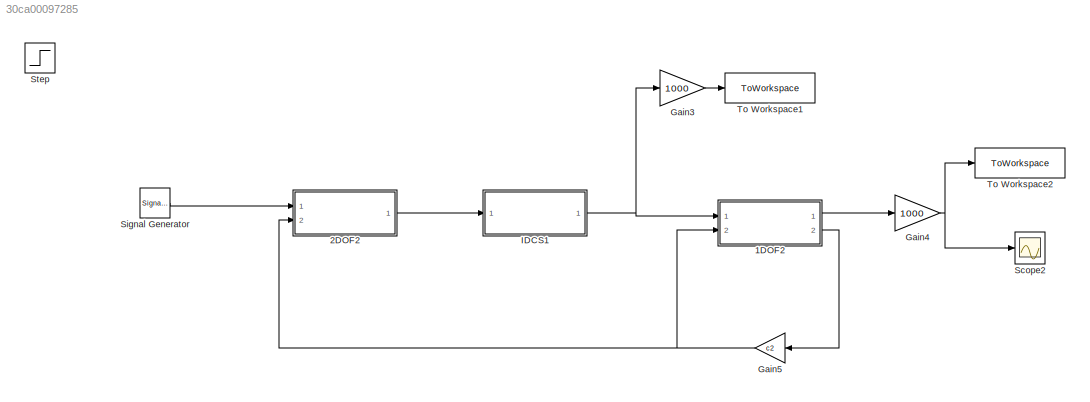
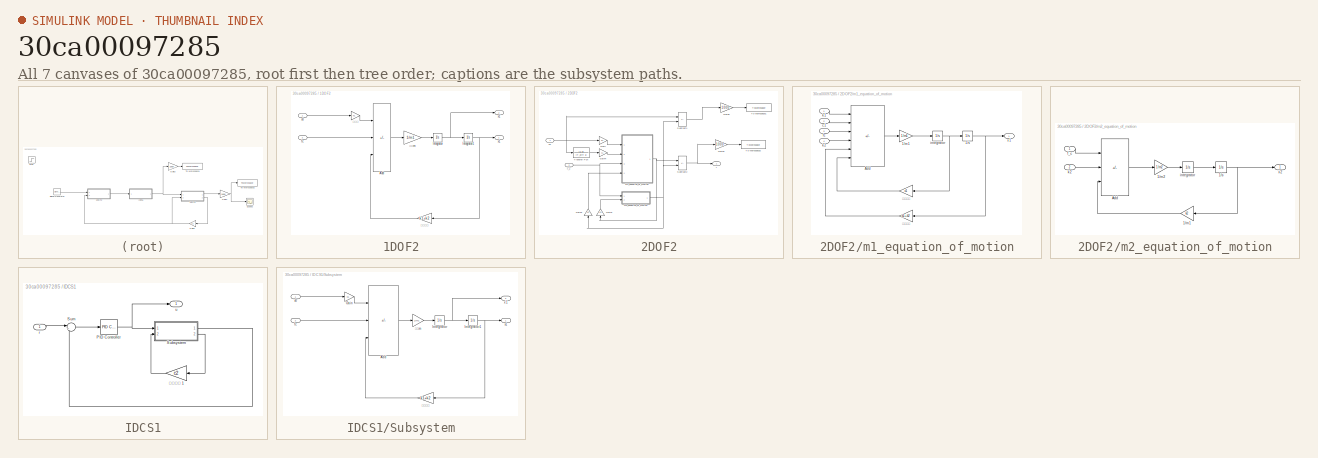
[diagram: thumbnail index - all 7 canvases of the model, root first then tree order]
MODEL slx_30ca00097285
KIND model
CONFIG AbsTol = auto
CONFIG EnableMultiTasking = off
CONFIG FixedStep = Step_Time
CONFIG MaxStep = auto
CONFIG MinStep = auto
CONFIG RelTol = 1e-3
CONFIG SampleTimeConstraint = Unconstrained
CONFIG Solver = ode4
CONFIG SolverName = ode4
CONFIG StartTime = 0
CONFIG StopTime = t_end
BLOCK [SubSystem] 1DOF2
  Ports = [2, 2]
  RequestExecContextInheritance = off
BLOCK [Sum] 1DOF2/Add
  IconShape = rectangular
  Inputs = +--
  Ports = [3, 1]
BLOCK [Integrator] 1DOF2/Integrator
  Ports = [1, 1]
BLOCK [Integrator] 1DOF2/Integrator1
  Ports = [1, 1]
BLOCK [Inport] 1DOF2/fc
  Port = 2
BLOCK [Inport] 1DOF2/x0
BLOCK [Outport] 1DOF2/x1
BLOCK [Outport] 1DOF2/x1'
  Port = 2
BLOCK [Gain] 1DOF2/ばね下
  Gain = k1
BLOCK [Gain] 1DOF2/ばね定数 
  Gain = k1+k2
BLOCK [Gain] 1DOF2/質量m
  Gain = 1/m1
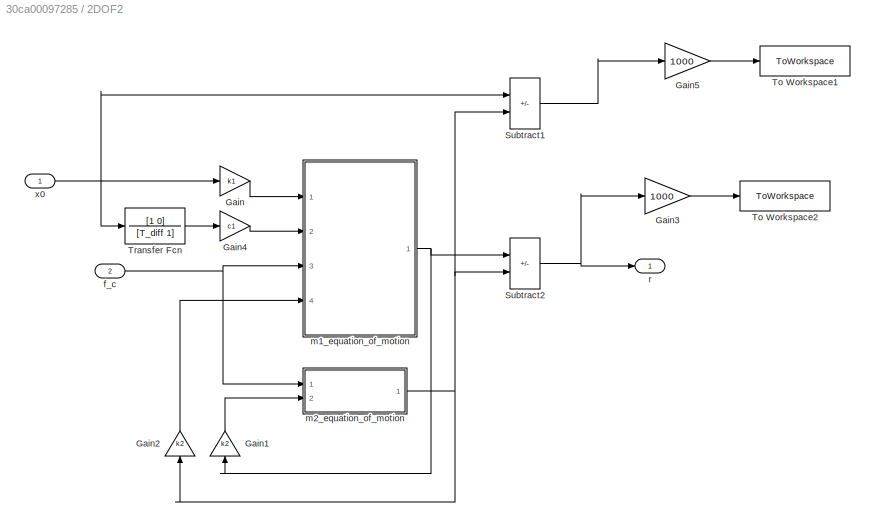
BLOCK [SubSystem] 2DOF2
  Ports = [2, 1]
  RequestExecContextInheritance = off
BLOCK [Gain] 2DOF2/Gain
  Gain = k1
BLOCK [Gain] 2DOF2/Gain1
  Gain = k2
  NameLocation = right
BLOCK [Gain] 2DOF2/Gain2
  Gain = k2
  NameLocation = right
BLOCK [Gain] 2DOF2/Gain3
  Gain = 1000
BLOCK [Gain] 2DOF2/Gain4
  Gain = c1
BLOCK [Gain] 2DOF2/Gain5
  Gain = 1000
BLOCK [Sum] 2DOF2/Subtract1
  IconShape = rectangular
  Inputs = +-
  Ports = [2, 1]
BLOCK [Sum] 2DOF2/Subtract2
  IconShape = rectangular
  Inputs = -+
  Ports = [2, 1]
BLOCK [ToWorkspace] 2DOF2/To Workspace1
  FixptAsFi = on
  MaxDataPoints = inf
  Ports = [1]
  SampleTime = -1
  SaveFormat = Timeseries
  VariableName = u_rela
BLOCK [ToWorkspace] 2DOF2/To Workspace2
  FixptAsFi = on
  MaxDataPoints = inf
  Ports = [1]
  SampleTime = -1
  SaveFormat = Timeseries
  VariableName = r
BLOCK [TransferFcn] 2DOF2/Transfer Fcn
  Denominator = [T_diff 1]
  Numerator = [1 0]
BLOCK [Inport] 2DOF2/f_c
  Port = 2
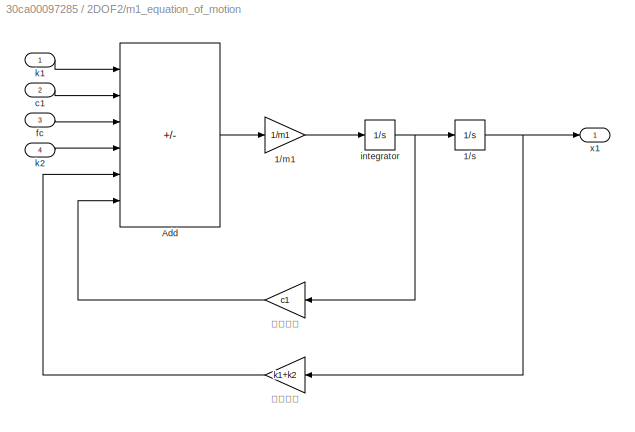
BLOCK [SubSystem] 2DOF2/m1_equation_of_motion
  Ports = [4, 1]
  RequestExecContextInheritance = off
BLOCK [Gain] 2DOF2/m1_equation_of_motion/1//m1
  Gain = 1/m1
BLOCK [Integrator] 2DOF2/m1_equation_of_motion/1//s
  Ports = [1, 1]
BLOCK [Sum] 2DOF2/m1_equation_of_motion/Add
  IconShape = rectangular
  Inputs = ++++--
  Ports = [6, 1]
BLOCK [Inport] 2DOF2/m1_equation_of_motion/c1
  Port = 2
BLOCK [Inport] 2DOF2/m1_equation_of_motion/fc
  Port = 3
BLOCK [Integrator] 2DOF2/m1_equation_of_motion/integrator
  Ports = [1, 1]
BLOCK [Inport] 2DOF2/m1_equation_of_motion/k1
  IconDisplay = Port number and signal name
BLOCK [Inport] 2DOF2/m1_equation_of_motion/k2
  Port = 4
BLOCK [Outport] 2DOF2/m1_equation_of_motion/x1
BLOCK [Gain] 2DOF2/m1_equation_of_motion/ばね定数
  Gain = k1+k2
BLOCK [Gain] 2DOF2/m1_equation_of_motion/減衰係数
  Gain = c1
BLOCK [SubSystem] 2DOF2/m2_equation_of_motion
  Ports = [2, 1]
  RequestExecContextInheritance = off
BLOCK [Gain] 2DOF2/m2_equation_of_motion/1//m1
  Gain = k2
BLOCK [Gain] 2DOF2/m2_equation_of_motion/1//m2
  Gain = 1/m2
BLOCK [Integrator] 2DOF2/m2_equation_of_motion/1//s
  Ports = [1, 1]
BLOCK [Sum] 2DOF2/m2_equation_of_motion/Add
  IconShape = rectangular
  Inputs = -+-
  Ports = [3, 1]
BLOCK [Inport] 2DOF2/m2_equation_of_motion/f_c
  IconDisplay = Port number and signal name
BLOCK [Integrator] 2DOF2/m2_equation_of_motion/integrator
  Ports = [1, 1]
BLOCK [Inport] 2DOF2/m2_equation_of_motion/k2 
  Port = 2
BLOCK [Outport] 2DOF2/m2_equation_of_motion/x2
BLOCK [Outport] 2DOF2/r
BLOCK [Inport] 2DOF2/x0
BLOCK [Gain] Gain3
  Gain = 1000
BLOCK [Gain] Gain4
  Gain = 1000
BLOCK [Gain] Gain5
  Gain = c2
BLOCK [SubSystem] IDCS1
  Ports = [1, 1]
  RequestExecContextInheritance = off
BLOCK [Reference] IDCS1/PID Controller  REF=simulink/Continuous/PID Controller
  Ports = [1, 1]
  SourceBlock = simulink/Continuous/PID Controller
  SourceProductBaseCode = SL
  SourceType = PID 1dof
BLOCK [SubSystem] IDCS1/Subsystem
  Ports = [2, 2]
  RequestExecContextInheritance = off
BLOCK [Sum] IDCS1/Subsystem/Add
  IconShape = rectangular
  Inputs = +--
  Ports = [3, 1]
BLOCK [Gain] IDCS1/Subsystem/Gain
  Gain = k1
BLOCK [Integrator] IDCS1/Subsystem/Integrator
  Ports = [1, 1]
BLOCK [Integrator] IDCS1/Subsystem/Integrator1
  Ports = [1, 1]
BLOCK [Inport] IDCS1/Subsystem/fc
  Port = 2
BLOCK [Outport] IDCS1/Subsystem/x'1
  Port = 2
BLOCK [Inport] IDCS1/Subsystem/x0
BLOCK [Outport] IDCS1/Subsystem/x1
BLOCK [Gain] IDCS1/Subsystem/ばね定数 
  Gain = k1+k2
BLOCK [Gain] IDCS1/Subsystem/質量m
  Gain = 1/m1
BLOCK [Sum] IDCS1/Sum
  Inputs = |+-
  Ports = [2, 1]
BLOCK [Inport] IDCS1/r
BLOCK [Outport] IDCS1/u
BLOCK [Gain] IDCS1/ばね定数 1
  Gain = c2
BLOCK [Scope] Scope2
  Floating = off
  NumInputPorts = 1
  Ports = [1]
  ScopeSpecificationString = Simulink.scopes.TimeScopeBlockCfg('CurrentConfiguration', extmgr.ConfigurationSet(extmgr.Configuration('Core','General UI',true),extmgr.Configuration('Core','Source UI',true),extmgr.Configuration('Sources','WiredSimulink',true,'DataLoggingVariableName','ScopeData1'),extmgr.Configuration('Visuals','Time Domain',true,'SerializedDisplays',{struct('MinYLimReal','-12.10872','MaxYLimReal','12.83686','YL...<+1396ch>
BLOCK [SignalGenerator] Signal Generator
  Amplitude = A
  Frequency = Hz
  Ports = [0, 1]
  Units = rad/sec
BLOCK [Step] Step
  After = A
  SampleTime = 0
BLOCK [ToWorkspace] To Workspace1
  FixptAsFi = on
  MaxDataPoints = inf
  Ports = [1]
  SampleTime = -1
  SaveFormat = Timeseries
  VariableName = u
BLOCK [ToWorkspace] To Workspace2
  FixptAsFi = on
  MaxDataPoints = inf
  Ports = [1]
  SampleTime = -1
  SaveFormat = Timeseries
  VariableName = x
LINE 1DOF2/Add:1 -> 1DOF2/質量m:1
NET 1DOF2/Integrator1:1 -> 1DOF2/x1:1, 1DOF2/ばね定数 :1
NET 1DOF2/Integrator:1 -> 1DOF2/Integrator1:1, 1DOF2/x1':1
LINE 1DOF2/fc:1 -> 1DOF2/Add:2
LINE 1DOF2/x0:1 -> 1DOF2/ばね下:1
LINE 1DOF2/ばね下:1 -> 1DOF2/Add:1
LINE 1DOF2/ばね定数 :1 -> 1DOF2/Add:3
LINE 1DOF2/質量m:1 -> 1DOF2/Integrator:1
LINE 1DOF2:1 -> Gain4:1
LINE 1DOF2:2 -> Gain5:1
LINE 2DOF2/Gain1:1 -> 2DOF2/m2_equation_of_motion:2
LINE 2DOF2/Gain2:1 -> 2DOF2/m1_equation_of_motion:4
LINE 2DOF2/Gain3:1 -> 2DOF2/To Workspace2:1
LINE 2DOF2/Gain4:1 -> 2DOF2/m1_equation_of_motion:2
LINE 2DOF2/Gain5:1 -> 2DOF2/To Workspace1:1
LINE 2DOF2/Gain:1 -> 2DOF2/m1_equation_of_motion:1
LINE 2DOF2/Subtract1:1 -> 2DOF2/Gain5:1
NET 2DOF2/Subtract2:1 -> 2DOF2/Gain3:1, 2DOF2/r:1
LINE 2DOF2/Transfer Fcn:1 -> 2DOF2/Gain4:1
NET 2DOF2/f_c:1 -> 2DOF2/m1_equation_of_motion:3, 2DOF2/m2_equation_of_motion:1
LINE 2DOF2/m1_equation_of_motion/1//m1:1 -> 2DOF2/m1_equation_of_motion/integrator:1
NET 2DOF2/m1_equation_of_motion/1//s:1 -> 2DOF2/m1_equation_of_motion/x1:1, 2DOF2/m1_equation_of_motion/ばね定数:1
LINE 2DOF2/m1_equation_of_motion/Add:1 -> 2DOF2/m1_equation_of_motion/1//m1:1
LINE 2DOF2/m1_equation_of_motion/c1:1 -> 2DOF2/m1_equation_of_motion/Add:2
LINE 2DOF2/m1_equation_of_motion/fc:1 -> 2DOF2/m1_equation_of_motion/Add:3
NET 2DOF2/m1_equation_of_motion/integrator:1 -> 2DOF2/m1_equation_of_motion/1//s:1, 2DOF2/m1_equation_of_motion/減衰係数:1
LINE 2DOF2/m1_equation_of_motion/k1:1 -> 2DOF2/m1_equation_of_motion/Add:1
LINE 2DOF2/m1_equation_of_motion/k2:1 -> 2DOF2/m1_equation_of_motion/Add:4
LINE 2DOF2/m1_equation_of_motion/ばね定数:1 -> 2DOF2/m1_equation_of_motion/Add:5
LINE 2DOF2/m1_equation_of_motion/減衰係数:1 -> 2DOF2/m1_equation_of_motion/Add:6
NET 2DOF2/m1_equation_of_motion:1 -> 2DOF2/Gain1:1, 2DOF2/Subtract2:1
LINE 2DOF2/m2_equation_of_motion/1//m1:1 -> 2DOF2/m2_equation_of_motion/Add:3
LINE 2DOF2/m2_equation_of_motion/1//m2:1 -> 2DOF2/m2_equation_of_motion/integrator:1
NET 2DOF2/m2_equation_of_motion/1//s:1 -> 2DOF2/m2_equation_of_motion/1//m1:1, 2DOF2/m2_equation_of_motion/x2:1
LINE 2DOF2/m2_equation_of_motion/Add:1 -> 2DOF2/m2_equation_of_motion/1//m2:1
LINE 2DOF2/m2_equation_of_motion/f_c:1 -> 2DOF2/m2_equation_of_motion/Add:1
LINE 2DOF2/m2_equation_of_motion/integrator:1 -> 2DOF2/m2_equation_of_motion/1//s:1
LINE 2DOF2/m2_equation_of_motion/k2 :1 -> 2DOF2/m2_equation_of_motion/Add:2
NET 2DOF2/m2_equation_of_motion:1 -> 2DOF2/Gain2:1, 2DOF2/Subtract1:2, 2DOF2/Subtract2:2
NET 2DOF2/x0:1 -> 2DOF2/Gain:1, 2DOF2/Subtract1:1, 2DOF2/Transfer Fcn:1
LINE 2DOF2:1 -> IDCS1:1
LINE Gain3:1 -> To Workspace1:1
NET Gain4:1 -> Scope2:1, To Workspace2:1
NET Gain5:1 -> 1DOF2:2, 2DOF2:2
NET IDCS1/PID Controller:1 -> IDCS1/Subsystem:1, IDCS1/u:1
LINE IDCS1/Subsystem/Add:1 -> IDCS1/Subsystem/質量m:1
LINE IDCS1/Subsystem/Gain:1 -> IDCS1/Subsystem/Add:1
NET IDCS1/Subsystem/Integrator1:1 -> IDCS1/Subsystem/x1:1, IDCS1/Subsystem/ばね定数 :1
NET IDCS1/Subsystem/Integrator:1 -> IDCS1/Subsystem/Integrator1:1, IDCS1/Subsystem/x'1:1
LINE IDCS1/Subsystem/fc:1 -> IDCS1/Subsystem/Add:2
LINE IDCS1/Subsystem/x0:1 -> IDCS1/Subsystem/Gain:1
LINE IDCS1/Subsystem/ばね定数 :1 -> IDCS1/Subsystem/Add:3
LINE IDCS1/Subsystem/質量m:1 -> IDCS1/Subsystem/Integrator:1
LINE IDCS1/Subsystem:1 -> IDCS1/Sum:2
LINE IDCS1/Subsystem:2 -> IDCS1/ばね定数 1:1
LINE IDCS1/Sum:1 -> IDCS1/PID Controller:1
LINE IDCS1/r:1 -> IDCS1/Sum:1
LINE IDCS1/ばね定数 1:1 -> IDCS1/Subsystem:2
NET IDCS1:1 -> 1DOF2:1, Gain3:1
LINE Signal Generator:1 -> 2DOF2:1
note: NET lines group one-source signal fan-out (src -> all destinations, sorted); 1:1 wires keep LINE
